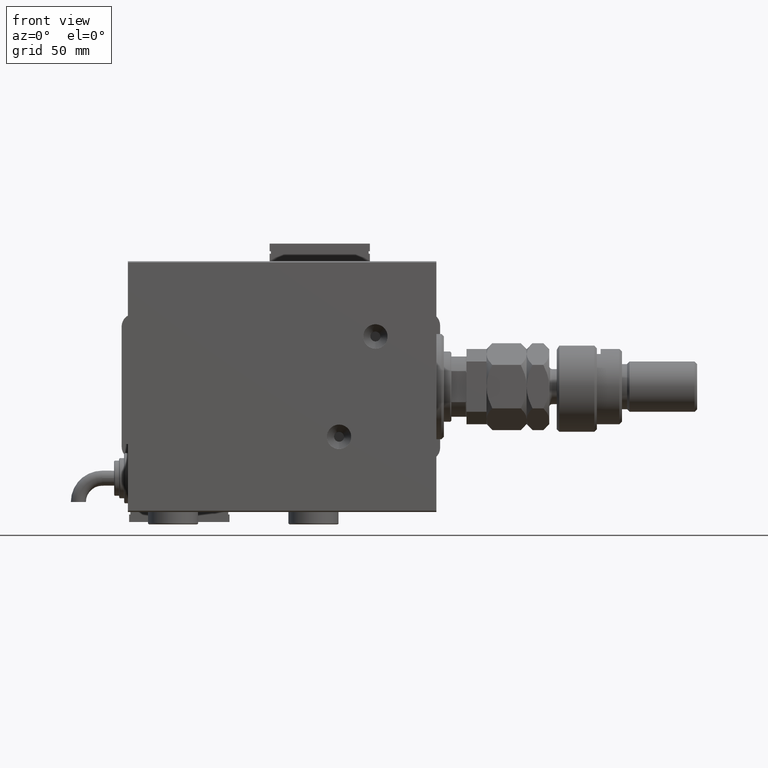
[diagram: clean part render]
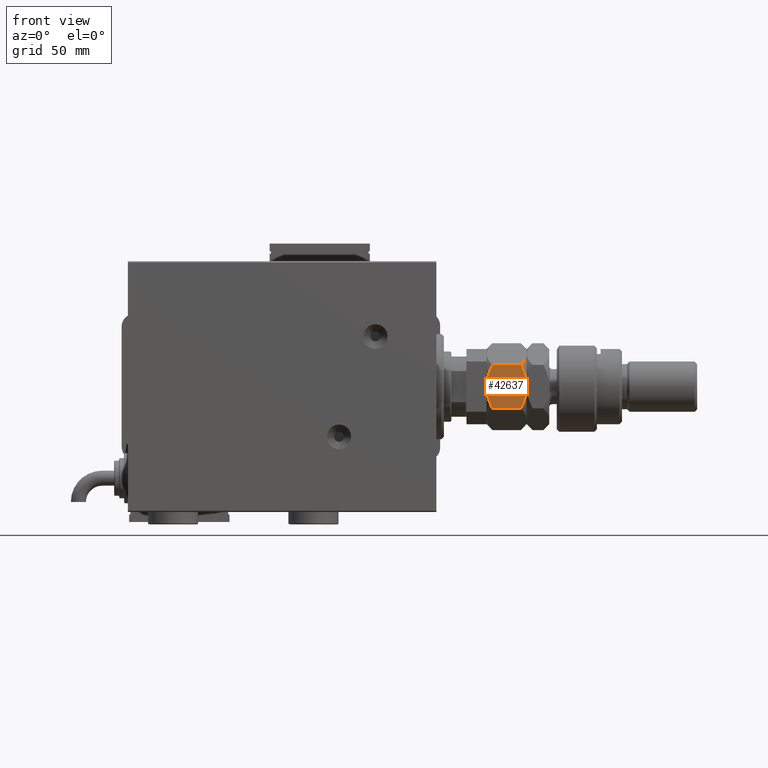
[diagram: same view with one face highlighted and labeled with its STEP entity id]
A machine part, front view. The second image highlights one B-rep face of the part: STEP entity #42637.
In plain terms, the highlighted planar face has unit normal (0, 1, 0).
Its self-contained STEP definition (entity closure, byte-faithful):
#486 = B_SPLINE_CURVE_WITH_KNOTS ( 'NONE', 3,
 ( #60329, #55436, #6111, #10362, #20824, #16239 ),
 .UNSPECIFIED., .F., .F.,
 ( 4, 2, 4 ),
 ( 0.008977392552884447263, 0.01343452311421656532, 0.01789165367554868338 ),
 .UNSPECIFIED. ) ;
#1288 = EDGE_CURVE ( 'NONE', #37463, #25964, #33438, .T. ) ;
#1886 = AXIS2_PLACEMENT_3D ( 'NONE', #12100, #38185, #28387 ) ;
#2031 = CARTESIAN_POINT ( 'NONE',  ( 1.176108425306638505, -16.64148155974179488, 14.35851844025821755 ) ) ;
#2499 = VERTEX_POINT ( 'NONE', #11982 ) ;
#2715 = CARTESIAN_POINT ( 'NONE',  ( 1.174746544192159625, -16.64226784216984711, 1.642267842169777836 ) ) ;
#4110 = VERTEX_POINT ( 'NONE', #28104 ) ;
#5728 = ORIENTED_EDGE ( 'NONE', *, *, #40645, .F. ) ;
#6111 = CARTESIAN_POINT ( 'NONE',  ( 10.08691881950258917, -11.49682277995505331, 15.76967007806078591 ) ) ;
#6882 = VERTEX_POINT ( 'NONE', #16079 ) ;
#7296 = CARTESIAN_POINT ( 'NONE',  ( 7.499999999999994671, -12.99038105676658184, 0.000000000000000000 ) ) ;
#7521 = B_SPLINE_CURVE_WITH_KNOTS ( 'NONE', 3,
 ( #44875, #15174, #40975, #40315, #45846, #40640, #60895, #55334 ),
 .UNSPECIFIED., .F., .F.,
 ( 4, 2, 2, 4 ),
 ( 2.544309033642853415E-07, 0.004488823491893907842, 0.006733108022389181456, 0.008977392552884455937 ),
 .UNSPECIFIED. ) ;
#7867 = CARTESIAN_POINT ( 'NONE',  ( 2.378834511187501111, -15.94708733029709791, 14.93551393225600066 ) ) ;
#10362 = CARTESIAN_POINT ( 'NONE',  ( 12.61607045183964360, -10.03661640420387080, 14.93952096862912171 ) ) ;
#11982 = CARTESIAN_POINT ( 'NONE',  ( 15.00000000000000000, -8.660254037844389075, 2.320508075688767047 ) ) ;
#12100 = CARTESIAN_POINT ( 'NONE',  ( -3.035766082959412415E-15, -17.32050807568877104, 16.00000000000000000 ) ) ;
#12841 = CARTESIAN_POINT ( 'NONE',  ( 6.195449321423083688, -13.74356374221447119, -1.770863548392988866E-15 ) ) ;
#14990 = ORIENTED_EDGE ( 'NONE', *, *, #32057, .F. ) ;
#15174 = CARTESIAN_POINT ( 'NONE',  ( 13.82389157469335750, -9.339280553791367012, 1.641481559741792884 ) ) ;
#15852 = CARTESIAN_POINT ( 'NONE',  ( -3.035766082959412415E-15, -17.32050807568877104, 16.00000000000000000 ) ) ;
#16079 = CARTESIAN_POINT ( 'NONE',  ( 15.00000000000000000, -8.660254037844389075, 13.67949192431123961 ) ) ;
#16239 = CARTESIAN_POINT ( 'NONE',  ( 15.00000000000000000, -8.660254037844389075, 13.67949192431123961 ) ) ;
#16816 = DIRECTION ( 'NONE',  ( -0.000000000000000000, -0.000000000000000000, -1.000000000000000000 ) ) ;
#17256 = VECTOR ( 'NONE', #16816, 1000.000000000000000 ) ;
#18269 = PLANE ( 'NONE',  #1886 ) ;
#20824 = CARTESIAN_POINT ( 'NONE',  ( 13.82525345580783416, -9.338494271363316557, 14.35773215783021861 ) ) ;
#21953 = CARTESIAN_POINT ( 'NONE',  ( -3.416099238086855886E-15, -17.32050807568877104, 13.67949192431124317 ) ) ;
#22625 = CARTESIAN_POINT ( 'NONE',  ( 2.383929548160349299, -15.94414570932928576, 1.060479031370876957 ) ) ;
#25955 = LINE ( 'NONE', #15852, #17256 ) ;
#25964 = VERTEX_POINT ( 'NONE', #51791 ) ;
#28104 = CARTESIAN_POINT ( 'NONE',  ( -2.796947266322166691E-15, -17.32050807568877104, 2.320508075688761718 ) ) ;
#28387 = DIRECTION ( 'NONE',  ( -0.8660254037844388186, -0.4999999999999996669, 0.000000000000000000 ) ) ;
#29643 = LINE ( 'NONE', #35192, #53918 ) ;
#32057 = EDGE_CURVE ( 'NONE', #52031, #4110, #39842, .T. ) ;
#32743 = CARTESIAN_POINT ( 'NONE',  ( 4.913081180497406386, -14.48393933357810681, 0.2303299219392160313 ) ) ;
#32973 = EDGE_CURVE ( 'NONE', #37463, #4110, #25955, .T. ) ;
#33008 = CARTESIAN_POINT ( 'NONE',  ( 6.843123817691747490, -13.36962869744650284, 16.00000000000000711 ) ) ;
#33438 = B_SPLINE_CURVE_WITH_KNOTS ( 'NONE', 3,
 ( #21953, #2031, #7867, #62755, #52613, #37915, #33008, #41873 ),
 .UNSPECIFIED., .F., .F.,
 ( 4, 2, 2, 4 ),
 ( 2.544309033646407248E-07, 0.004488823491893905240, 0.006733108022389175384, 0.008977392552884447263 ),
 .UNSPECIFIED. ) ;
#35192 = CARTESIAN_POINT ( 'NONE',  ( 15.00000000000000000, -8.660254037844389075, 16.00000000000000000 ) ) ;
#35936 = EDGE_LOOP ( 'NONE', ( #61739, #5728, #56753, #45572, #49558, #14990 ) ) ;
#37463 = VERTEX_POINT ( 'NONE', #40144 ) ;
#37915 = CARTESIAN_POINT ( 'NONE',  ( 6.176419610670694560, -13.75455055083996214, 15.94046462602530312 ) ) ;
#38185 = DIRECTION ( 'NONE',  ( -0.4999999999999996669, 0.8660254037844388186, 0.000000000000000000 ) ) ;
#39842 = B_SPLINE_CURVE_WITH_KNOTS ( 'NONE', 3,
 ( #7296, #12841, #32743, #22625, #2715, #42545 ),
 .UNSPECIFIED., .F., .F.,
 ( 4, 2, 4 ),
 ( 0.008977392552884455937, 0.01343452311421657053, 0.01789165367554868685 ),
 .UNSPECIFIED. ) ;
#40144 = CARTESIAN_POINT ( 'NONE',  ( -3.416099238086855886E-15, -17.32050807568877104, 13.67949192431124317 ) ) ;
#40315 = CARTESIAN_POINT ( 'NONE',  ( 10.75222765045651308, -11.11270654730956586, 0.4475714085130263475 ) ) ;
#40640 = CARTESIAN_POINT ( 'NONE',  ( 8.823580389329300999, -12.22621156269320331, 0.05953537397470176629 ) ) ;
#40645 = EDGE_CURVE ( 'NONE', #6882, #2499, #29643, .T. ) ;
#40776 = CARTESIAN_POINT ( 'NONE',  ( 7.499999999999994671, -12.99038105676658184, 0.000000000000000000 ) ) ;
#40975 = CARTESIAN_POINT ( 'NONE',  ( 12.62116548881249756, -10.03367478323606754, 1.064486067744006892 ) ) ;
#41873 = CARTESIAN_POINT ( 'NONE',  ( 7.499999999999993783, -12.99038105676658006, 16.00000000000000000 ) ) ;
#42545 = CARTESIAN_POINT ( 'NONE',  ( -2.796947266322166691E-15, -17.32050807568877104, 2.320508075688761718 ) ) ;
#42637 = ADVANCED_FACE ( 'NONE', ( #63022 ), #18269, .F. ) ;
#44875 = CARTESIAN_POINT ( 'NONE',  ( 15.00000000000000000, -8.660254037844389075, 2.320508075688767047 ) ) ;
#45572 = ORIENTED_EDGE ( 'NONE', *, *, #1288, .F. ) ;
#45846 = CARTESIAN_POINT ( 'NONE',  ( 10.11832554202262102, -11.47869010025374870, 0.2838026619462938327 ) ) ;
#46457 = EDGE_CURVE ( 'NONE', #2499, #52031, #7521, .T. ) ;
#47352 = EDGE_CURVE ( 'NONE', #25964, #6882, #486, .T. ) ;
#49558 = ORIENTED_EDGE ( 'NONE', *, *, #32973, .T. ) ;
#51791 = CARTESIAN_POINT ( 'NONE',  ( 7.499999999999993783, -12.99038105676658006, 16.00000000000000000 ) ) ;
#52031 = VERTEX_POINT ( 'NONE', #40776 ) ;
#52613 = CARTESIAN_POINT ( 'NONE',  ( 4.881674457977372761, -14.50207201327941320, 15.71619733805371411 ) ) ;
#53918 = VECTOR ( 'NONE', #60031, 1000.000000000000000 ) ;
#55334 = CARTESIAN_POINT ( 'NONE',  ( 7.499999999999994671, -12.99038105676658184, 0.000000000000000000 ) ) ;
#55436 = CARTESIAN_POINT ( 'NONE',  ( 8.804550678576907430, -12.23719837131869248, 16.00000000000000000 ) ) ;
#56753 = ORIENTED_EDGE ( 'NONE', *, *, #47352, .F. ) ;
#60031 = DIRECTION ( 'NONE',  ( -0.000000000000000000, -0.000000000000000000, -1.000000000000000000 ) ) ;
#60329 = CARTESIAN_POINT ( 'NONE',  ( 7.499999999999993783, -12.99038105676658006, 16.00000000000000000 ) ) ;
#60895 = CARTESIAN_POINT ( 'NONE',  ( 8.156876182308243628, -12.61113341608666083, -1.722865014715246890E-15 ) ) ;
#61739 = ORIENTED_EDGE ( 'NONE', *, *, #46457, .F. ) ;
#62755 = CARTESIAN_POINT ( 'NONE',  ( 4.247772349543483372, -14.86805556622359425, 15.55242859148698109 ) ) ;
#63022 = FACE_OUTER_BOUND ( 'NONE', #35936, .T. ) ;